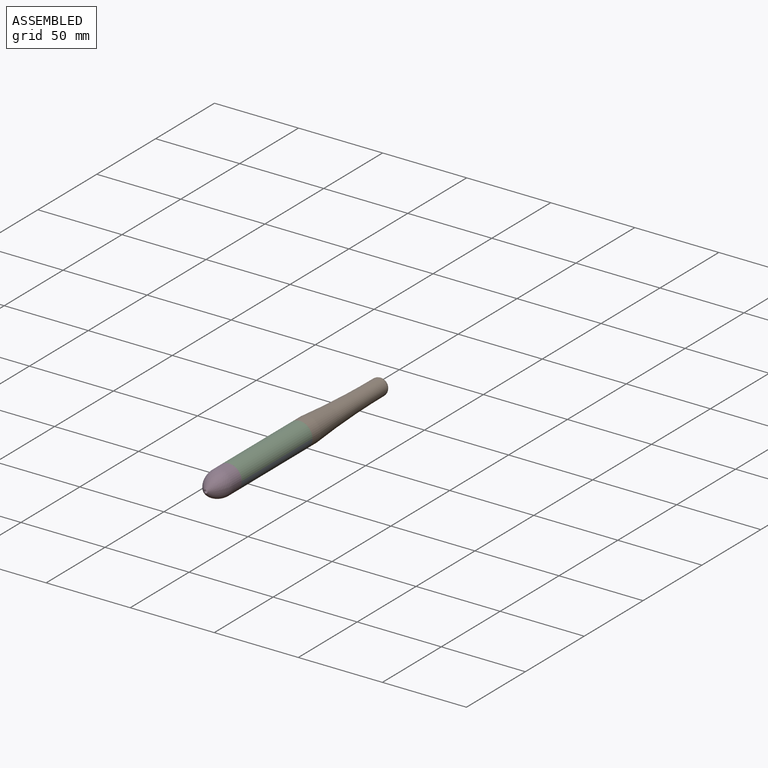
[diagram: assembled view]
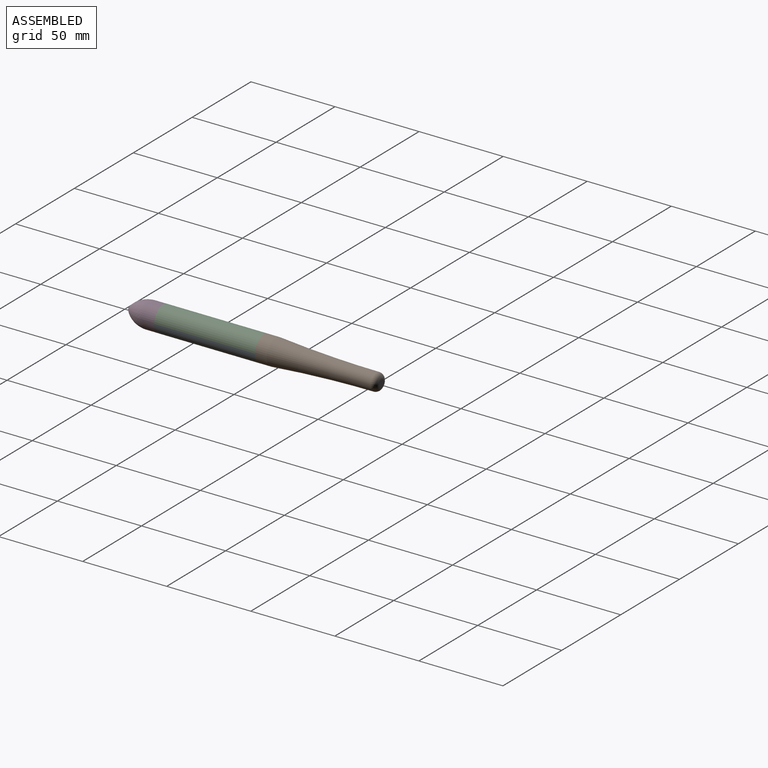
[diagram: assembled view, second angle]
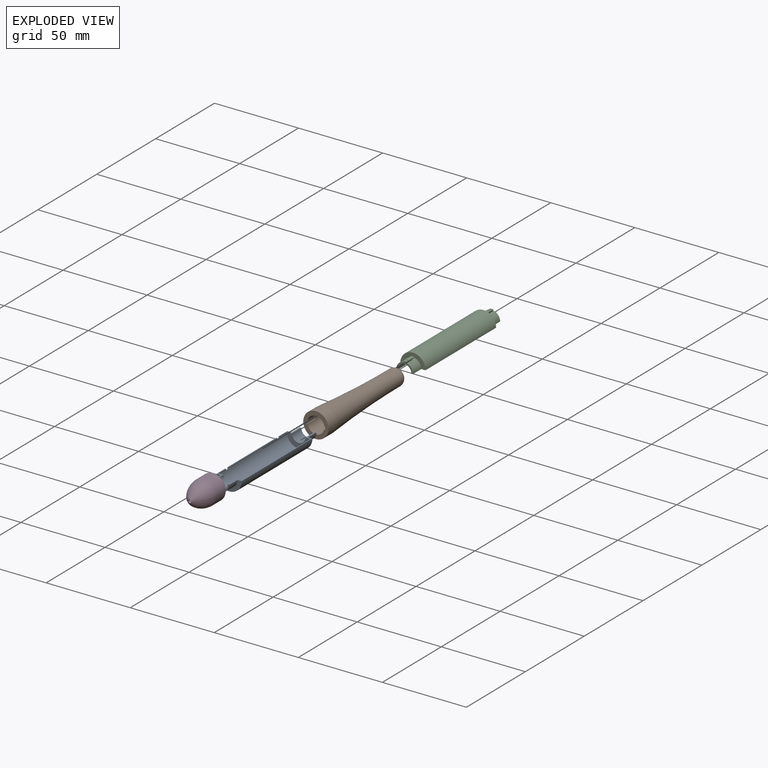
[diagram: exploded view]
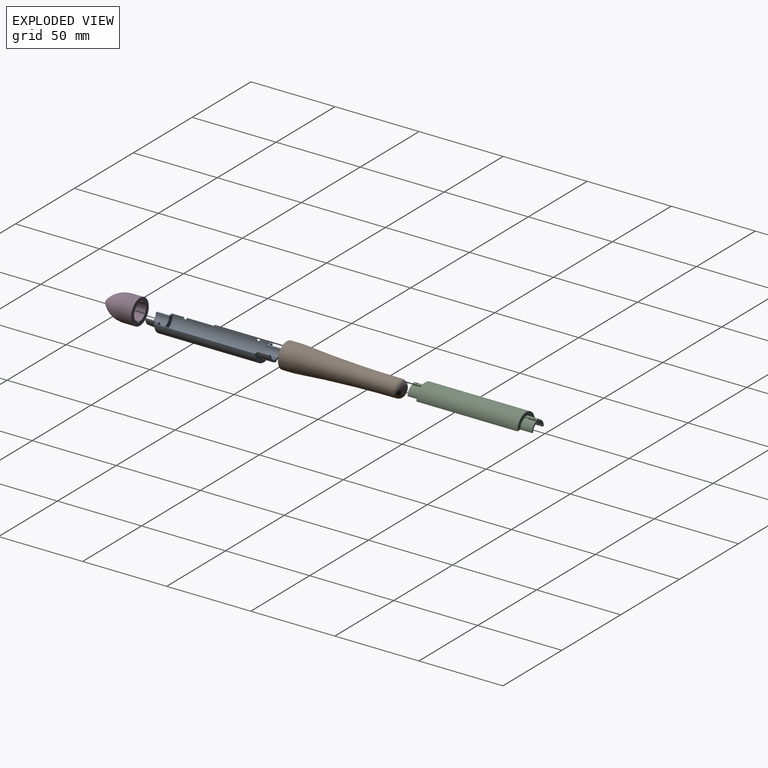
[diagram: exploded view, second angle]
ASSEMBLY  parts=4 mates=7
PART A: 40 faces, bbox 15x74x7.5 mm
  f0: plane 41.5x0.5mm, normal (0,0,-1), area 20.8mm2, adj f18,f20,f21,f39
  f1: plane 14x7mm, normal (0,1,0), area 51.8mm2, adj f4,f6,f7,f20
  f2: plane 1.06x0.6mm, normal (0,-1,0), area 0.4mm2, adj f5,f7,f11,f15
  f3: cylinder r=5mm len=7mm, axis (0,-1,0), area 46.7mm2, adj f4,f8,f9,f13,f14,f19
  f4: plane 74x3.5mm, normal (0,0,-1), area 50mm2, adj f1,f3,f7,f14,f18,f19,f20,f22
  f5: cylinder r=5mm len=7mm, axis (0,-1,0), area 46.7mm2, adj f2,f6,f11,f15,f16,f19
  f6: plane 14.25x3.5mm, normal (0,0,-1), area 13.6mm2, adj f1,f5,f7,f16,f18,f19,f20,f21
  f7: cylinder r=4mm len=8mm, axis (0,-1,0), area 97mm2, adj f1,f2,f4,f6,f8,f9,f11,f12
  f8: plane 1.06x0.6mm, normal (0,-1,0), area 0.4mm2, adj f3,f7,f9,f13
  f9: plane 7x1.48mm, normal (0.98,0,-0.17), area 8.5mm2, adj f3,f7,f8,f10,f12,f19
  f10: cylinder r=5.5mm len=7mm, axis (0,1,0), area 12.7mm2, adj f9,f11,f12,f17,f19
  f11: plane 7x1.48mm, normal (-0.98,0,-0.17), area 8.5mm2, adj f2,f5,f7,f10,f12,f19
  f12: plane 1.91x1.56mm, normal (0,-1,0), area 2.5mm2, adj f7,f9,f10,f11
  f13: plane 5x0.97mm, normal (-0.97,0,0.26), area 5mm2, adj f3,f7,f8,f14
  f14: plane 4.83x3.96mm, normal (0,-1,0), area 5.9mm2, adj f3,f4,f7,f13
  f15: plane 5x0.97mm, normal (0.97,0,0.26), area 5mm2, adj f2,f5,f7,f16
  f16: plane 4.83x3.96mm, normal (0,-1,0), area 5.9mm2, adj f5,f6,f7,f15
  f17: sphere r=0.5mm, area 1.6mm2, adj f10
  f18: cylinder r=7.5mm len=60mm, axis (0,-1,0), area 1410.6mm2, adj f0,f4,f6,f19,f21,f26,f38,f39
  f19: plane 15x7.5mm, normal (0,-1,0), area 48.2mm2, adj f3,f4,f5,f6,f9,f10,f11,f18
  f20: cylinder r=7mm len=58mm, axis (0,-1,0), area 1272.3mm2, adj f0,f1,f4,f6,f21,f22,f26,f39
  f21: cylinder r=1mm len=2mm, axis (1,0,0), area 1.6mm2, adj f0,f6,f18,f20
  f22: plane 14x7mm, normal (0,-1,0), area 51.8mm2, adj f4,f20,f26,f27
  f23: plane 1.06x0.6mm, normal (0,1,0), area 0.4mm2, adj f25,f27,f31,f35
  f24: cylinder r=5mm len=7mm, axis (0,1,0), area 46.7mm2, adj f4,f28,f29,f33,f34,f38
  f25: cylinder r=5mm len=7mm, axis (0,1,0), area 46.7mm2, adj f23,f26,f31,f35,f36,f38
  f26: plane 14.25x3.5mm, normal (0,0,-1), area 13.6mm2, adj f18,f20,f22,f25,f27,f36,f38,f39
  f27: cylinder r=4mm len=8mm, axis (0,1,0), area 97mm2, adj f4,f22,f23,f26,f28,f29,f31,f32
  f28: plane 1.06x0.6mm, normal (0,1,0), area 0.4mm2, adj f24,f27,f29,f33
  f29: plane 7x1.48mm, normal (0.98,0,-0.17), area 8.5mm2, adj f24,f27,f28,f30,f32,f38
  f30: cylinder r=5.5mm len=7mm, axis (0,-1,0), area 12.7mm2, adj f29,f31,f32,f37,f38
  f31: plane 7x1.48mm, normal (-0.98,0,-0.17), area 8.5mm2, adj f23,f25,f27,f30,f32,f38
  f32: plane 1.91x1.56mm, normal (0,1,0), area 2.5mm2, adj f27,f29,f30,f31
  f33: plane 5x0.97mm, normal (-0.97,0,0.26), area 5mm2, adj f24,f27,f28,f34
  f34: plane 4.83x3.96mm, normal (0,1,0), area 5.9mm2, adj f4,f24,f27,f33
  f35: plane 5x0.97mm, normal (0.97,0,0.26), area 5mm2, adj f23,f25,f27,f36
  f36: plane 4.83x3.96mm, normal (0,1,0), area 5.9mm2, adj f25,f26,f27,f35
  f37: sphere r=0.5mm, area 1.6mm2, adj f30
  f38: plane 15x7.5mm, normal (0,1,0), area 48.2mm2, adj f4,f18,f24,f25,f26,f29,f30,f31
  f39: cylinder r=1mm len=2mm, axis (1,0,0), area 1.6mm2, adj f0,f18,f20,f26
PART B: 20 faces, bbox 761.4x1705.1x761.4 mm
  f0: cylinder r=5mm len=9.85mm, axis (0,1,0), area 97.7mm2, adj f1,f3,f13,f15
  f1: plane 15x15mm, normal (0,1,0), area 96.3mm2, adj f0,f2,f9,f12,f13,f14,f15,f16
  f2: cylinder r=5mm len=9.85mm, axis (0,1,0), area 97.7mm2, adj f1,f3,f12,f16
  f3: torus R=1204.25mm, axis (0,1,0), area 1508.6mm2, adj f0,f2,f4,f11,f17
  f4: torus R=2mm, axis (0,1,0), area 43.7mm2, adj f3,f5
  f5: plane 4x4mm, normal (0,1,0), area 12.6mm2, adj f4
  f6: plane 4x4mm, normal (0,-1,0), area 12.6mm2, adj f7
  f7: torus R=2mm, axis (0,1,0), area 115.8mm2, adj f6,f8
  f8: torus R=726.25mm, axis (0,1,0), area 2201.7mm2, adj f7,f9
  f9: cylinder r=7.5mm len=15mm, axis (0,1,0), area 329.9mm2, adj f1,f8
  f10: sphere r=0.5mm, area 1.6mm2, adj f14
  f11: plane 1.91x0.58mm, normal (0,1,0), area 0.9mm2, adj f3,f12,f13,f14
  f12: plane 7x0.49mm, normal (0.98,0,-0.17), area 3.5mm2, adj f1,f2,f11,f14
  f13: plane 7x0.49mm, normal (-0.98,0,-0.17), area 3.5mm2, adj f0,f1,f11,f14
  f14: cylinder r=5.5mm len=7mm, axis (0,1,0), area 12.7mm2, adj f1,f10,f11,f12,f13
  f15: plane 7x0.49mm, normal (-0.98,0,0.17), area 3.5mm2, adj f0,f1,f17,f18
  f16: plane 7x0.49mm, normal (0.98,0,0.17), area 3.5mm2, adj f1,f2,f17,f18
  f17: plane 1.91x0.58mm, normal (0,1,0), area 0.9mm2, adj f3,f15,f16,f18
  f18: cylinder r=5.5mm len=7mm, axis (0,1,0), area 12.7mm2, adj f1,f15,f16,f17,f19
  f19: sphere r=0.5mm, area 1.6mm2, adj f18
PART C: same geometry as A
PART D: 17 faces, bbox 15x20x15 mm
  f0: cylinder r=5mm len=9.85mm, axis (0,1,0), area 97.7mm2, adj f2,f4,f11,f12
  f1: cylinder r=1mm len=2.79mm, axis (0,1,0), area 17.5mm2, adj f2,f6
  f2: revolved ~10.21x10mm, area 256.8mm2, adj f0,f1,f3,f9,f15
  f3: cylinder r=5mm len=9.85mm, axis (0,1,0), area 97.7mm2, adj f2,f4,f10,f14
  f4: plane 15x15mm, normal (0,1,0), area 96.3mm2, adj f0,f3,f5,f8,f10,f11,f12,f13
  f5: cylinder r=7.5mm len=15mm, axis (0,1,0), area 329.9mm2, adj f4,f6
  f6: revolved ~15x15mm, area 498.8mm2, adj f1,f5
  f7: sphere r=0.5mm, area 1.6mm2, adj f8
  f8: cylinder r=5.5mm len=7mm, axis (0,1,0), area 12.7mm2, adj f4,f7,f9,f10,f11
  f9: plane 1.91x0.58mm, normal (0,1,0), area 0.9mm2, adj f2,f8,f10,f11
  f10: plane 7x0.49mm, normal (0.98,0,-0.17), area 3.5mm2, adj f3,f4,f8,f9
  f11: plane 7x0.49mm, normal (-0.98,0,-0.17), area 3.5mm2, adj f0,f4,f8,f9
  f12: plane 7x0.49mm, normal (-0.98,0,0.17), area 3.5mm2, adj f0,f4,f13,f15
  f13: cylinder r=5.5mm len=7mm, axis (0,1,0), area 12.7mm2, adj f4,f12,f14,f15,f16
  f14: plane 7x0.49mm, normal (0.98,0,0.17), area 3.5mm2, adj f3,f4,f13,f15
  f15: plane 1.91x0.58mm, normal (0,1,0), area 0.9mm2, adj f2,f12,f13,f14
  f16: sphere r=0.5mm, area 1.6mm2, adj f13
PLACE A rot(axis=(-1,0,0),180deg) t=(15.41,43.49,3)mm
PLACE B rot(axis=(-0.73,0,-0.69),180deg) t=(15.41,43.49,3)mm
PLACE C t=(15.41,-16.51,3)mm fixed
PLACE D rot(axis=(0,1,0),163deg) t=(15.41,-23.51,3)mm
MATE planar A.f38 <-> C.f19  axis (0,-1,0) through (15.41,-16.51,-1)mm
MATE planar A.f38 <-> D.f0  axis (0,-1,0) through (15.41,-16.51,-1)mm
MATE cylindrical B.f0 <-> C.f3  axis (0,-1,0) through (15.41,43.49,3)mm
MATE cylindrical C.f3 <-> A.f3  axis (0,-1,0) through (15.41,-23.51,3)mm
MATE planar A.f4 <-> C.f4  axis (0,0,1) through (22.41,42.49,3)mm
MATE cylindrical D.f0 <-> A.f3  axis (0,1,0) through (15.41,-20.01,3)mm
MATE planar B.f0 <-> A.f3  axis (0,-1,0) through (15.41,43.49,3)mm
